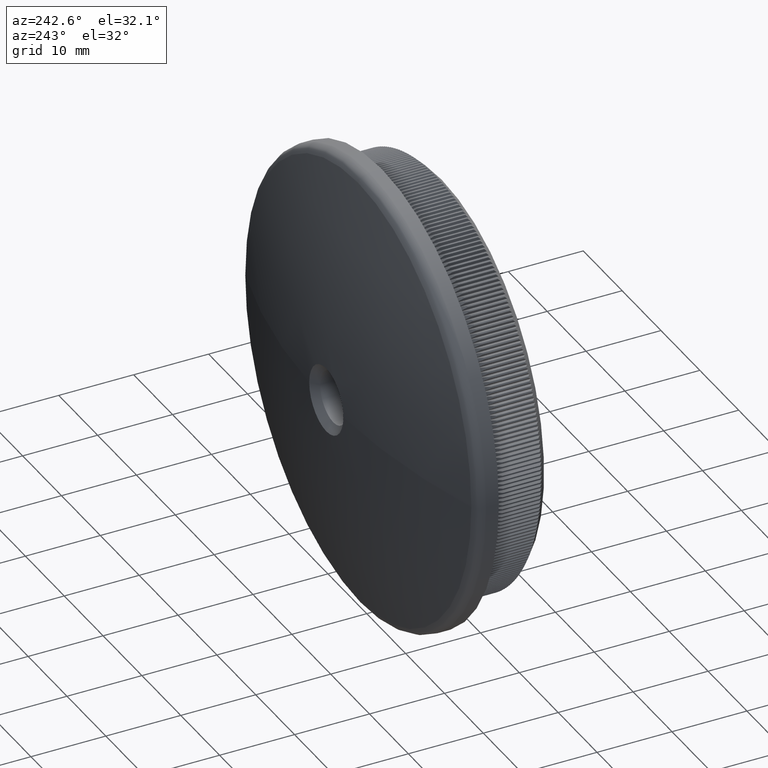
[diagram: clean part render]
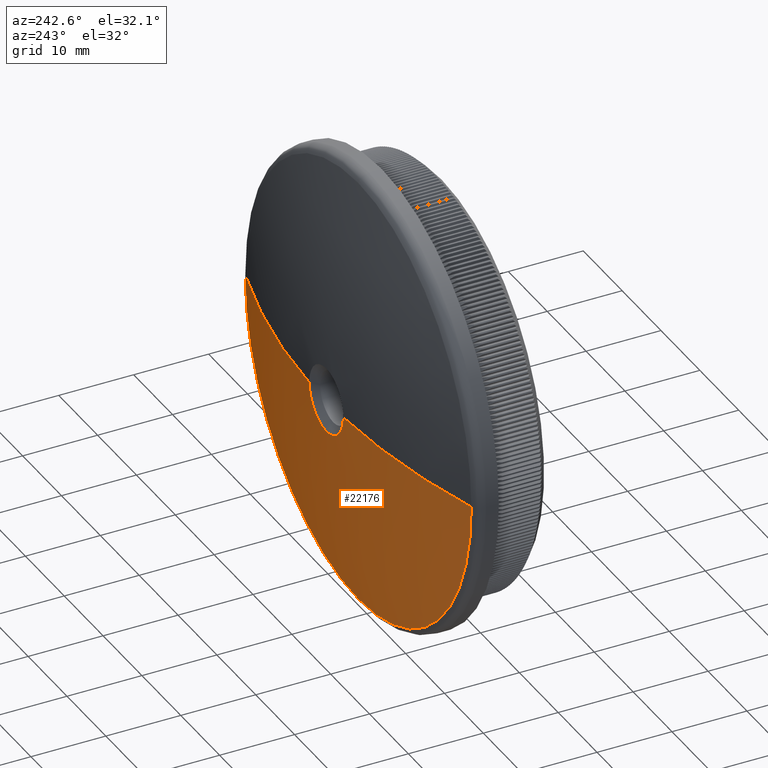
[diagram: same view with one face highlighted and labeled with its STEP entity id]
A machine part, auxiliary view. The second image highlights one B-rep face of the part: STEP entity #22176.
In plain terms, the highlighted spherical surface has radius 99.0545 mm.
Its self-contained STEP definition (entity closure, byte-faithful):
#1619 = CARTESIAN_POINT ( 'NONE',  ( 0.000000000000000000, 15.40248352619531857, 0.000000000000000000 ) ) ;
#2853 = EDGE_LOOP ( 'NONE', ( #19872, #27119, #27622, #42217, #20867, #18701 ) ) ;
#3681 = DIRECTION ( 'NONE',  ( 0.000000000000000000, 1.000000000000000000, 0.000000000000000000 ) ) ;
#3929 = EDGE_CURVE ( 'NONE', #12416, #5471, #28543, .T. ) ;
#4655 = DIRECTION ( 'NONE',  ( 0.000000000000000000, 0.000000000000000000, 1.000000000000000000 ) ) ;
#5107 = DIRECTION ( 'NONE',  ( 0.000000000000000000, 0.000000000000000000, -1.000000000000000000 ) ) ;
#5471 = VERTEX_POINT ( 'NONE', #14325 ) ;
#6504 = DIRECTION ( 'NONE',  ( -0.000000000000000000, -1.000000000000000000, -0.000000000000000000 ) ) ;
#6691 = DIRECTION ( 'NONE',  ( 0.000000000000000000, 1.000000000000000000, 0.000000000000000000 ) ) ;
#6949 = DIRECTION ( 'NONE',  ( 1.000000000000000000, 0.000000000000000000, -1.224646799147353207E-16 ) ) ;
#7803 = CIRCLE ( 'NONE', #29447, 29.09052289363557975 ) ;
#8169 = VERTEX_POINT ( 'NONE', #16906 ) ;
#8467 = CARTESIAN_POINT ( 'NONE',  ( 0.000000000000000000, -83.55452127659575012, 0.000000000000000000 ) ) ;
#10085 = CARTESIAN_POINT ( 'NONE',  ( 4.394244621768513603, 15.40248352619531857, 0.000000000000000000 ) ) ;
#10429 = CIRCLE ( 'NONE', #40139, 4.394244621768513603 ) ;
#11394 = CARTESIAN_POINT ( 'NONE',  ( -4.394244621768513603, 15.40248352619531857, 2.050350667896645727E-15 ) ) ;
#12416 = VERTEX_POINT ( 'NONE', #30279 ) ;
#12504 = SPHERICAL_SURFACE ( 'NONE', #32161, 99.05452127659575012 ) ;
#14325 = CARTESIAN_POINT ( 'NONE',  ( -29.09052289363562593, 11.13201241806655695, 3.562561574721366206E-15 ) ) ;
#14547 = VERTEX_POINT ( 'NONE', #11394 ) ;
#15156 = DIRECTION ( 'NONE',  ( 1.000000000000000000, 0.000000000000000000, 0.000000000000000000 ) ) ;
#16906 = CARTESIAN_POINT ( 'NONE',  ( 29.09052289363562593, 11.13201241806655695, 0.000000000000000000 ) ) ;
#18177 = CARTESIAN_POINT ( 'NONE',  ( 0.000000000000000000, 11.13201241806654984, 0.000000000000000000 ) ) ;
#18554 = AXIS2_PLACEMENT_3D ( 'NONE', #24057, #27559, #6949 ) ;
#18701 = ORIENTED_EDGE ( 'NONE', *, *, #3929, .T. ) ;
#19002 = CIRCLE ( 'NONE', #22966, 99.05452127659575012 ) ;
#19872 = ORIENTED_EDGE ( 'NONE', *, *, #25334, .F. ) ;
#20095 = AXIS2_PLACEMENT_3D ( 'NONE', #24101, #6691, #27753 ) ;
#20867 = ORIENTED_EDGE ( 'NONE', *, *, #29246, .T. ) ;
#22176 = ADVANCED_FACE ( 'NONE', ( #33278 ), #12504, .T. ) ;
#22794 = DIRECTION ( 'NONE',  ( -1.000000000000000000, 0.000000000000000000, 0.000000000000000000 ) ) ;
#22966 = AXIS2_PLACEMENT_3D ( 'NONE', #36686, #40185, #22794 ) ;
#22992 = DIRECTION ( 'NONE',  ( -0.000000000000000000, -1.000000000000000000, -0.000000000000000000 ) ) ;
#23779 = CARTESIAN_POINT ( 'NONE',  ( 0.000000000000000000, 15.40248352619531857, 0.000000000000000000 ) ) ;
#24057 = CARTESIAN_POINT ( 'NONE',  ( 0.000000000000000000, -83.55452127659575012, 0.000000000000000000 ) ) ;
#24101 = CARTESIAN_POINT ( 'NONE',  ( 0.000000000000000000, 11.13201241806654984, 0.000000000000000000 ) ) ;
#25334 = EDGE_CURVE ( 'NONE', #14547, #5471, #42413, .T. ) ;
#25956 = VERTEX_POINT ( 'NONE', #10085 ) ;
#27061 = EDGE_CURVE ( 'NONE', #14547, #41566, #37436, .T. ) ;
#27119 = ORIENTED_EDGE ( 'NONE', *, *, #27061, .T. ) ;
#27559 = DIRECTION ( 'NONE',  ( 1.224646799147353207E-16, -0.000000000000000000, 1.000000000000000000 ) ) ;
#27622 = ORIENTED_EDGE ( 'NONE', *, *, #37429, .T. ) ;
#27753 = DIRECTION ( 'NONE',  ( 0.000000000000000000, 0.000000000000000000, -1.000000000000000000 ) ) ;
#28454 = CARTESIAN_POINT ( 'NONE',  ( 5.381397610719240652E-16, 15.40248352619531857, -4.394244621768480741 ) ) ;
#28543 = CIRCLE ( 'NONE', #20095, 29.09052289363557975 ) ;
#29246 = EDGE_CURVE ( 'NONE', #8169, #12416, #7803, .T. ) ;
#29447 = AXIS2_PLACEMENT_3D ( 'NONE', #18177, #3681, #31759 ) ;
#30279 = CARTESIAN_POINT ( 'NONE',  ( 0.000000000000000000, 11.13201241806654984, -29.09052289363557975 ) ) ;
#31759 = DIRECTION ( 'NONE',  ( 0.000000000000000000, 0.000000000000000000, -1.000000000000000000 ) ) ;
#32161 = AXIS2_PLACEMENT_3D ( 'NONE', #8467, #4655, #15156 ) ;
#33278 = FACE_OUTER_BOUND ( 'NONE', #2853, .T. ) ;
#36686 = CARTESIAN_POINT ( 'NONE',  ( 0.000000000000000000, -83.55452127659575012, 0.000000000000000000 ) ) ;
#37429 = EDGE_CURVE ( 'NONE', #41566, #25956, #10429, .T. ) ;
#37436 = CIRCLE ( 'NONE', #44290, 4.394244621768513603 ) ;
#40139 = AXIS2_PLACEMENT_3D ( 'NONE', #1619, #22992, #5107 ) ;
#40185 = DIRECTION ( 'NONE',  ( 0.000000000000000000, 0.000000000000000000, -1.000000000000000000 ) ) ;
#41020 = DIRECTION ( 'NONE',  ( 0.000000000000000000, 0.000000000000000000, -1.000000000000000000 ) ) ;
#41566 = VERTEX_POINT ( 'NONE', #28454 ) ;
#42217 = ORIENTED_EDGE ( 'NONE', *, *, #42555, .T. ) ;
#42413 = CIRCLE ( 'NONE', #18554, 99.05452127659575012 ) ;
#42555 = EDGE_CURVE ( 'NONE', #25956, #8169, #19002, .T. ) ;
#44290 = AXIS2_PLACEMENT_3D ( 'NONE', #23779, #6504, #41020 ) ;